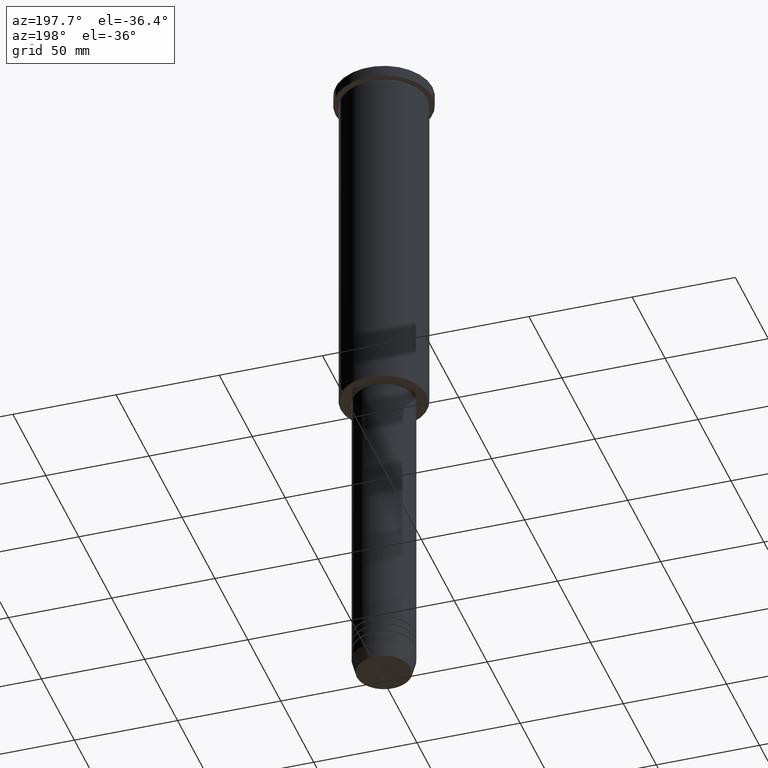
[diagram: clean part render]
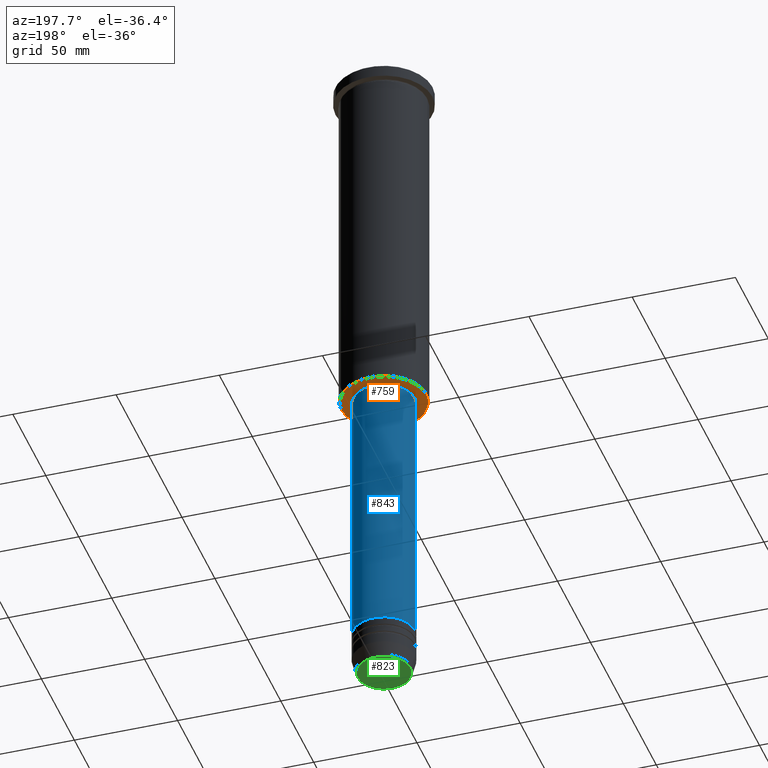
[diagram: same view with three faces highlighted in distinct colors, each labeled with its STEP entity id]
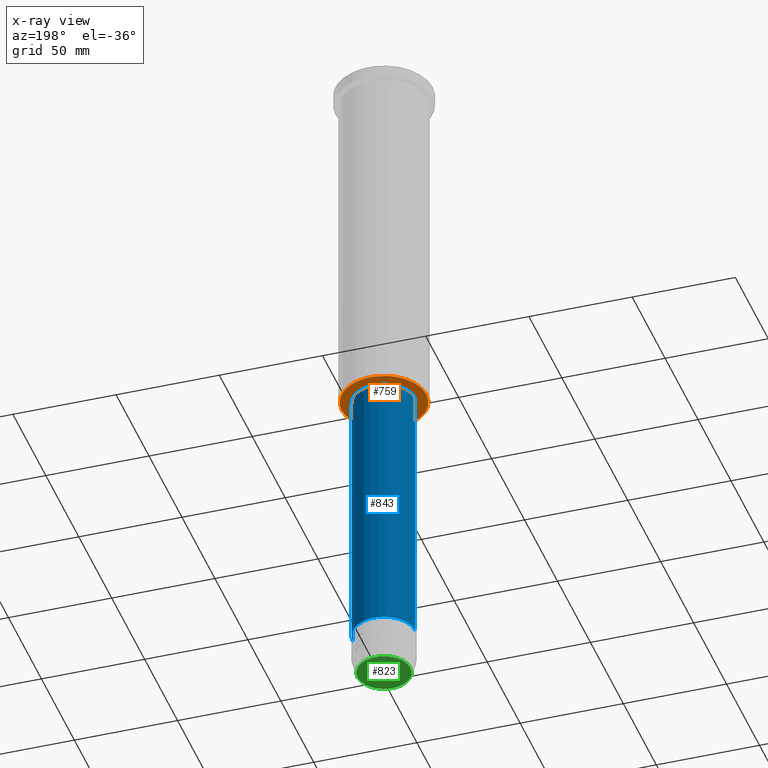
[diagram: x-ray of the same camera — body ghosted, the three highlighted faces saturated]
A machine part, auxiliary view with three faces highlighted in distinct colors.
The next image is the same camera in x-ray (body ghosted, the three faces saturated) — at least one of them is partly hidden behind the body in this view.
Their STEP definitions:

[orange] entity #759 — the highlighted planar face has unit normal (0, 0, -1).
#5 = DIRECTION ( 'NONE',  ( 0.000000000000000000, 0.000000000000000000, -1.000000000000000000 ) ) ;
#12 = DIRECTION ( 'NONE',  ( 0.000000000000000000, 0.000000000000000000, -1.000000000000000000 ) ) ;
#81 = DIRECTION ( 'NONE',  ( -1.000000000000000000, 0.000000000000000000, -0.000000000000000000 ) ) ;
#86 = CARTESIAN_POINT ( 'NONE',  ( 0.000000000000000000, 0.000000000000000000, -176.0000000000000000 ) ) ;
#144 = CARTESIAN_POINT ( 'NONE',  ( 0.000000000000000000, 0.000000000000000000, -176.0000000000000000 ) ) ;
#174 = PLANE ( 'NONE',  #1055 ) ;
#242 = DIRECTION ( 'NONE',  ( 0.000000000000000000, 0.000000000000000000, -1.000000000000000000 ) ) ;
#251 = EDGE_LOOP ( 'NONE', ( #674, #319 ) ) ;
#313 = CARTESIAN_POINT ( 'NONE',  ( 0.000000000000000000, 0.000000000000000000, -176.0000000000000000 ) ) ;
#319 = ORIENTED_EDGE ( 'NONE', *, *, #1047, .T. ) ;
#323 = CARTESIAN_POINT ( 'NONE',  ( -14.49999999999999822, 1.775737858763662015E-15, -176.0000000000000000 ) ) ;
#346 = VERTEX_POINT ( 'NONE', #730 ) ;
#347 = DIRECTION ( 'NONE',  ( 1.000000000000000000, 0.000000000000000000, 0.000000000000000000 ) ) ;
#384 = EDGE_CURVE ( 'NONE', #1149, #971, #1002, .T. ) ;
#412 = AXIS2_PLACEMENT_3D ( 'NONE', #144, #242, #771 ) ;
#486 = EDGE_LOOP ( 'NONE', ( #837, #560 ) ) ;
#507 = EDGE_CURVE ( 'NONE', #971, #1149, #703, .T. ) ;
#516 = CARTESIAN_POINT ( 'NONE',  ( -20.49999999999996447, 2.541142108230755902E-15, -176.0000000000000000 ) ) ;
#548 = DIRECTION ( 'NONE',  ( -1.000000000000000000, 0.000000000000000000, 0.000000000000000000 ) ) ;
#560 = ORIENTED_EDGE ( 'NONE', *, *, #384, .T. ) ;
#567 = CARTESIAN_POINT ( 'NONE',  ( 14.49999999999999822, 0.000000000000000000, -176.0000000000000000 ) ) ;
#592 = DIRECTION ( 'NONE',  ( -0.000000000000000000, -0.000000000000000000, 1.000000000000000000 ) ) ;
#630 = VERTEX_POINT ( 'NONE', #516 ) ;
#636 = FACE_BOUND ( 'NONE', #486, .T. ) ;
#642 = AXIS2_PLACEMENT_3D ( 'NONE', #86, #1181, #347 ) ;
#647 = CARTESIAN_POINT ( 'NONE',  ( 0.000000000000000000, 21.00000000000000000, -176.0000000000000000 ) ) ;
#674 = ORIENTED_EDGE ( 'NONE', *, *, #1143, .T. ) ;
#703 = CIRCLE ( 'NONE', #859, 14.49999999999999822 ) ;
#730 = CARTESIAN_POINT ( 'NONE',  ( 20.49999999999996447, 0.000000000000000000, -176.0000000000000000 ) ) ;
#749 = CIRCLE ( 'NONE', #1158, 20.49999999999996447 ) ;
#759 = ADVANCED_FACE ( 'NONE', ( #831, #636 ), #174, .T. ) ;
#771 = DIRECTION ( 'NONE',  ( -1.000000000000000000, 0.000000000000000000, 0.000000000000000000 ) ) ;
#831 = FACE_OUTER_BOUND ( 'NONE', #251, .T. ) ;
#837 = ORIENTED_EDGE ( 'NONE', *, *, #507, .T. ) ;
#859 = AXIS2_PLACEMENT_3D ( 'NONE', #313, #592, #865 ) ;
#865 = DIRECTION ( 'NONE',  ( 1.000000000000000000, 0.000000000000000000, 0.000000000000000000 ) ) ;
#971 = VERTEX_POINT ( 'NONE', #567 ) ;
#985 = CIRCLE ( 'NONE', #412, 20.49999999999996447 ) ;
#1002 = CIRCLE ( 'NONE', #642, 14.49999999999999822 ) ;
#1004 = CARTESIAN_POINT ( 'NONE',  ( 0.000000000000000000, 0.000000000000000000, -176.0000000000000000 ) ) ;
#1047 = EDGE_CURVE ( 'NONE', #630, #346, #749, .T. ) ;
#1055 = AXIS2_PLACEMENT_3D ( 'NONE', #647, #5, #81 ) ;
#1143 = EDGE_CURVE ( 'NONE', #346, #630, #985, .T. ) ;
#1149 = VERTEX_POINT ( 'NONE', #323 ) ;
#1158 = AXIS2_PLACEMENT_3D ( 'NONE', #1004, #12, #548 ) ;
#1181 = DIRECTION ( 'NONE',  ( -0.000000000000000000, -0.000000000000000000, 1.000000000000000000 ) ) ;

[blue] entity #843 — the highlighted cylindrical surface (edge-blend (fillet) strip) has radius 15 mm, axis along (-0, -0, 1).
#52 = DIRECTION ( 'NONE',  ( 1.000000000000000000, 0.000000000000000000, 0.000000000000000000 ) ) ;
#64 = VERTEX_POINT ( 'NONE', #867 ) ;
#103 = EDGE_CURVE ( 'NONE', #692, #1027, #328, .T. ) ;
#123 = VECTOR ( 'NONE', #584, 1000.000000000000000 ) ;
#139 = DIRECTION ( 'NONE',  ( -0.000000000000000000, -0.000000000000000000, 1.000000000000000000 ) ) ;
#229 = VECTOR ( 'NONE', #1054, 1000.000000000000000 ) ;
#239 = DIRECTION ( 'NONE',  ( -0.000000000000000000, -0.000000000000000000, 1.000000000000000000 ) ) ;
#253 = DIRECTION ( 'NONE',  ( -0.000000000000000000, -0.000000000000000000, 1.000000000000000000 ) ) ;
#269 = ORIENTED_EDGE ( 'NONE', *, *, #1077, .F. ) ;
#281 = ORIENTED_EDGE ( 'NONE', *, *, #569, .F. ) ;
#304 = CARTESIAN_POINT ( 'NONE',  ( 15.00000000000000000, 0.000000000000000000, 0.000000000000000000 ) ) ;
#327 = FACE_OUTER_BOUND ( 'NONE', #686, .T. ) ;
#328 = LINE ( 'NONE', #881, #229 ) ;
#336 = CYLINDRICAL_SURFACE ( 'NONE', #868, 15.00000000000000000 ) ;
#399 = LINE ( 'NONE', #304, #123 ) ;
#436 = DIRECTION ( 'NONE',  ( 1.000000000000000000, 0.000000000000000000, 0.000000000000000000 ) ) ;
#518 = CARTESIAN_POINT ( 'NONE',  ( 0.000000000000000000, 0.000000000000000000, 0.000000000000000000 ) ) ;
#523 = CARTESIAN_POINT ( 'NONE',  ( 15.00000000000000000, 0.000000000000000000, -309.9999999999999432 ) ) ;
#549 = ORIENTED_EDGE ( 'NONE', *, *, #870, .T. ) ;
#569 = EDGE_CURVE ( 'NONE', #64, #1027, #1091, .T. ) ;
#584 = DIRECTION ( 'NONE',  ( -0.000000000000000000, -0.000000000000000000, 1.000000000000000000 ) ) ;
#634 = CARTESIAN_POINT ( 'NONE',  ( -15.00000000000000000, 1.836970198721029589E-15, -176.9999999999999432 ) ) ;
#686 = EDGE_LOOP ( 'NONE', ( #549, #1135, #281, #269 ) ) ;
#692 = VERTEX_POINT ( 'NONE', #1032 ) ;
#843 = ADVANCED_FACE ( 'NONE', ( #327 ), #336, .T. ) ;
#851 = CIRCLE ( 'NONE', #984, 15.00000000000000000 ) ;
#867 = CARTESIAN_POINT ( 'NONE',  ( 15.00000000000000000, 0.000000000000000000, -176.9999999999999432 ) ) ;
#868 = AXIS2_PLACEMENT_3D ( 'NONE', #518, #253, #1071 ) ;
#870 = EDGE_CURVE ( 'NONE', #1153, #692, #851, .T. ) ;
#881 = CARTESIAN_POINT ( 'NONE',  ( -15.00000000000000000, 1.836970198721029589E-15, 0.000000000000000000 ) ) ;
#895 = CARTESIAN_POINT ( 'NONE',  ( 0.000000000000000000, 0.000000000000000000, -176.9999999999999432 ) ) ;
#913 = AXIS2_PLACEMENT_3D ( 'NONE', #895, #239, #436 ) ;
#960 = CARTESIAN_POINT ( 'NONE',  ( 0.000000000000000000, 0.000000000000000000, -309.9999999999999432 ) ) ;
#984 = AXIS2_PLACEMENT_3D ( 'NONE', #960, #139, #52 ) ;
#1027 = VERTEX_POINT ( 'NONE', #634 ) ;
#1032 = CARTESIAN_POINT ( 'NONE',  ( -15.00000000000000000, 1.836970198721029589E-15, -309.9999999999999432 ) ) ;
#1054 = DIRECTION ( 'NONE',  ( -0.000000000000000000, -0.000000000000000000, 1.000000000000000000 ) ) ;
#1071 = DIRECTION ( 'NONE',  ( 1.000000000000000000, 0.000000000000000000, 0.000000000000000000 ) ) ;
#1077 = EDGE_CURVE ( 'NONE', #1153, #64, #399, .T. ) ;
#1091 = CIRCLE ( 'NONE', #913, 15.00000000000000000 ) ;
#1135 = ORIENTED_EDGE ( 'NONE', *, *, #103, .T. ) ;
#1153 = VERTEX_POINT ( 'NONE', #523 ) ;

[green] entity #823 — the highlighted planar face has unit normal (0, -0, 1).
#34 = AXIS2_PLACEMENT_3D ( 'NONE', #1094, #289, #195 ) ;
#88 = ORIENTED_EDGE ( 'NONE', *, *, #617, .T. ) ;
#195 = DIRECTION ( 'NONE',  ( 1.000000000000000000, 0.000000000000000000, 0.000000000000000000 ) ) ;
#260 = PLANE ( 'NONE',  #261 ) ;
#261 = AXIS2_PLACEMENT_3D ( 'NONE', #446, #784, #534 ) ;
#275 = CARTESIAN_POINT ( 'NONE',  ( 0.000000000000000000, 0.000000000000000000, -331.0000000000000000 ) ) ;
#280 = CARTESIAN_POINT ( 'NONE',  ( -12.74069215899265828, 1.589857736427680246E-15, -331.0000000000000000 ) ) ;
#289 = DIRECTION ( 'NONE',  ( 0.000000000000000000, 0.000000000000000000, -1.000000000000000000 ) ) ;
#325 = DIRECTION ( 'NONE',  ( 0.000000000000000000, 0.000000000000000000, -1.000000000000000000 ) ) ;
#330 = AXIS2_PLACEMENT_3D ( 'NONE', #275, #325, #966 ) ;
#392 = CIRCLE ( 'NONE', #34, 12.74069215899265828 ) ;
#433 = CIRCLE ( 'NONE', #330, 12.74069215899265828 ) ;
#446 = CARTESIAN_POINT ( 'NONE',  ( 0.000000000000000000, 0.000000000000000000, -331.0000000000000000 ) ) ;
#534 = DIRECTION ( 'NONE',  ( 1.000000000000000000, 0.000000000000000000, 0.000000000000000000 ) ) ;
#543 = EDGE_LOOP ( 'NONE', ( #667, #88 ) ) ;
#617 = EDGE_CURVE ( 'NONE', #763, #846, #433, .T. ) ;
#667 = ORIENTED_EDGE ( 'NONE', *, *, #772, .T. ) ;
#707 = FACE_OUTER_BOUND ( 'NONE', #543, .T. ) ;
#763 = VERTEX_POINT ( 'NONE', #280 ) ;
#772 = EDGE_CURVE ( 'NONE', #846, #763, #392, .T. ) ;
#784 = DIRECTION ( 'NONE',  ( 0.000000000000000000, -0.000000000000000000, 1.000000000000000000 ) ) ;
#823 = ADVANCED_FACE ( 'NONE', ( #707 ), #260, .F. ) ;
#846 = VERTEX_POINT ( 'NONE', #901 ) ;
#901 = CARTESIAN_POINT ( 'NONE',  ( 12.74069215899265828, 0.000000000000000000, -331.0000000000000000 ) ) ;
#966 = DIRECTION ( 'NONE',  ( 1.000000000000000000, 0.000000000000000000, 0.000000000000000000 ) ) ;
#1094 = CARTESIAN_POINT ( 'NONE',  ( 0.000000000000000000, 0.000000000000000000, -331.0000000000000000 ) ) ;